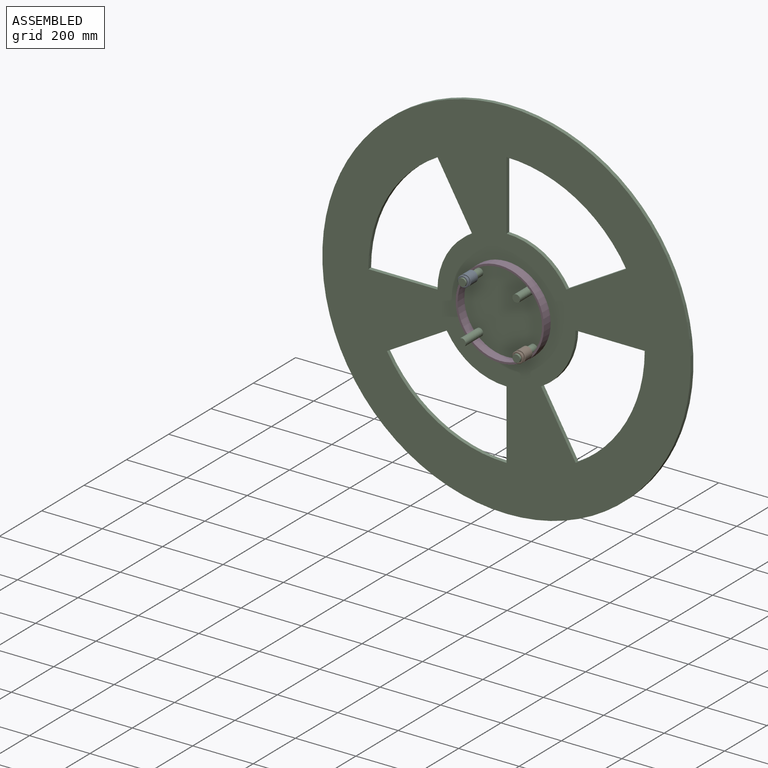
[diagram: assembled view]
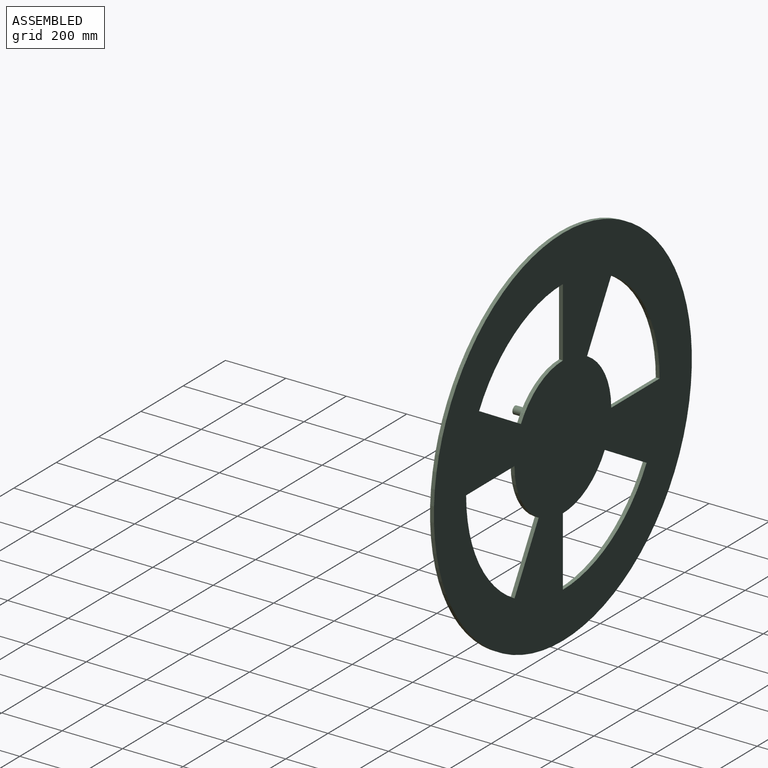
[diagram: assembled view, second angle]
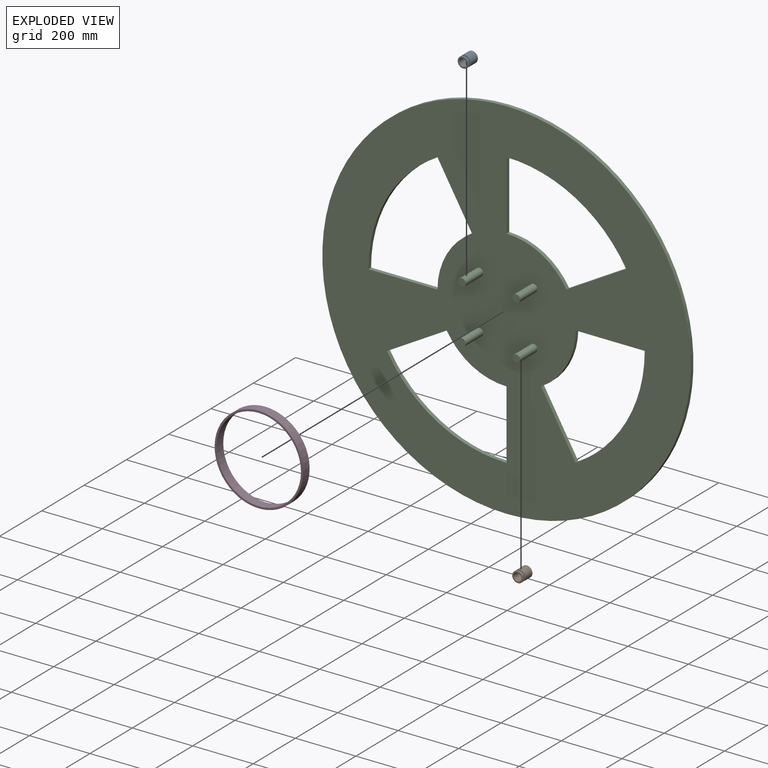
[diagram: exploded view]
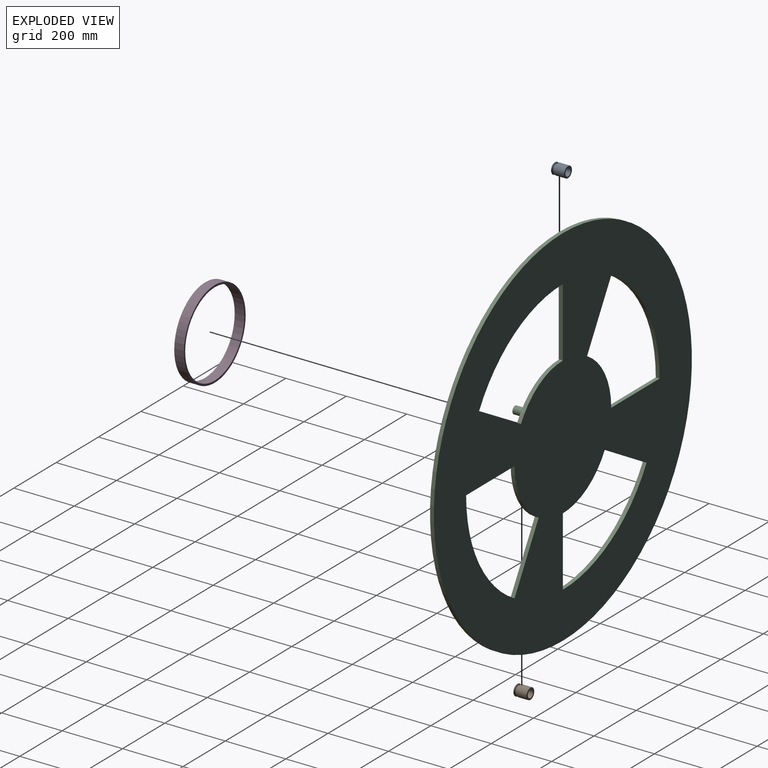
[diagram: exploded view, second angle]
ASSEMBLY  parts=4 mates=3
PART A: 14 faces, bbox 36.8x36.8x45.2 mm
  f0: cone r=18.41mm half-angle=45deg, axis (0,0,-1), area 122.1mm2, adj f1,f13
  f1: cylinder r=18.41mm len=36.83mm, axis (0,0,1), area 3791.2mm2, adj f0,f2
  f2: cone r=17.65mm half-angle=45deg, axis (0,0,1), area 122.1mm2, adj f1,f12
  f3: cone r=12.7mm half-angle=45deg, axis (0,0,-1), area 43.6mm2, adj f4,f12
  f4: cylinder r=12.7mm len=44.45mm, axis (0,0,1), area 3547mm2, adj f3,f5
  f5: cone r=13.08mm half-angle=45deg, axis (0,0,1), area 43.6mm2, adj f4,f11
  f6: cone r=18.41mm half-angle=45deg, axis (0,0,-1), area 239.1mm2, adj f7,f11
  f7: cylinder r=18.41mm len=36.83mm, axis (0,0,1), area 205.7mm2, adj f6,f8
  f8: cone r=16.89mm half-angle=45deg, axis (0,0,1), area 239.1mm2, adj f7,f10
  f9: cylinder r=14.22mm len=28.45mm, axis (0,0,1), area 544.8mm2, adj f10,f13
  f10: plane 33.78x33.78mm, normal (0,0,-1), area 260.7mm2, adj f8,f9
  f11: plane 33.78x33.78mm, normal (0,0,1), area 358.7mm2, adj f5,f6
  f12: plane 35.31x35.31mm, normal (0,0,-1), area 441.4mm2, adj f2,f3
  f13: plane 35.31x35.31mm, normal (0,0,1), area 343.4mm2, adj f0,f9
PART B: same geometry as A
PART C: 27 faces, bbox 1219.2x95.3x1219.2 mm
  f0: plane 1219.2x1219.2mm, normal (0,-1,0), area 837080.8mm2, adj f2,f3,f4,f5,f6,f7,f8,f9
  f1: plane 1219.2x1219.2mm, normal (0,1,0), area 839107.6mm2, adj f2,f3,f4,f5,f6,f7,f8,f9
  f2: cylinder r=609.6mm len=1219.2mm, axis (0,1,0), area 48643.9mm2, adj f0,f1
  f3: cylinder r=457.2mm len=395.95mm, axis (0,-1,0), area 6080.5mm2, adj f0,f1,f4,f6
  f4: plane 228.6x12.7mm, normal (1,0,0), area 2903.2mm2, adj f0,f1,f3,f5
  f5: cylinder r=228.6mm len=197.97mm, axis (0,-1,0), area 3040.2mm2, adj f0,f1,f4,f6
  f6: plane 197.97x114.3mm, normal (-0.5,0,0.87), area 2903.2mm2, adj f0,f1,f3,f5
  f7: cylinder r=457.2mm len=395.95mm, axis (0,-1,0), area 6080.5mm2, adj f0,f1,f8,f10
  f8: plane 228.6x12.7mm, normal (0,0,1), area 2903.2mm2, adj f0,f1,f7,f9
  f9: cylinder r=228.6mm len=197.97mm, axis (0,-1,0), area 3040.2mm2, adj f0,f1,f8,f10
  f10: plane 197.97x114.3mm, normal (-0.87,0,-0.5), area 2903.2mm2, adj f0,f1,f7,f9
  f11: cylinder r=457.2mm len=395.95mm, axis (0,-1,0), area 6080.5mm2, adj f0,f1,f12,f14
  f12: plane 228.6x12.7mm, normal (-1,0,0), area 2903.2mm2, adj f0,f1,f11,f13
  f13: cylinder r=228.6mm len=197.97mm, axis (0,-1,0), area 3040.2mm2, adj f0,f1,f12,f14
  f14: plane 197.97x114.3mm, normal (0.5,0,-0.87), area 2903.2mm2, adj f0,f1,f11,f13
  f15: cylinder r=457.2mm len=395.95mm, axis (0,-1,0), area 6080.5mm2, adj f0,f1,f16,f18
  f16: plane 228.6x12.7mm, normal (0,0,-1), area 2903.2mm2, adj f0,f1,f15,f17
  f17: cylinder r=228.6mm len=197.97mm, axis (0,-1,0), area 3040.2mm2, adj f0,f1,f16,f18
  f18: plane 197.97x114.3mm, normal (0.87,0,0.5), area 2903.2mm2, adj f0,f1,f15,f17
  f19: cylinder r=12.7mm len=82.55mm, axis (0,1,0), area 6587.2mm2, adj f0,f20
  f20: plane 25.4x25.4mm, normal (0,-1,0), area 506.7mm2, adj f19
  f21: cylinder r=12.7mm len=82.55mm, axis (0,1,0), area 6587.2mm2, adj f0,f22
  f22: plane 25.4x25.4mm, normal (0,-1,0), area 506.7mm2, adj f21
  f23: cylinder r=12.7mm len=82.55mm, axis (0,1,0), area 6587.2mm2, adj f0,f24
  f24: plane 25.4x25.4mm, normal (0,-1,0), area 506.7mm2, adj f23
  f25: cylinder r=12.7mm len=82.55mm, axis (0,1,0), area 6587.2mm2, adj f0,f26
  f26: plane 25.4x25.4mm, normal (0,-1,0), area 506.7mm2, adj f25
PART D: 4 faces, bbox 292.1x31.8x292.1 mm
  f0: cylinder r=139.7mm len=279.4mm, axis (0,1,0), area 27868.9mm2, adj f2,f3
  f1: cylinder r=146.05mm len=292.1mm, axis (0,1,0), area 29135.7mm2, adj f2,f3
  f2: plane 292.1x292.1mm, normal (0,-1,0), area 5700.5mm2, adj f0,f1
  f3: plane 292.1x292.1mm, normal (0,1,0), area 5700.5mm2, adj f0,f1
PLACE A rot(axis=(1,0,0),90deg) t=(-624.51,-287.63,145.64)mm
PLACE B rot(axis=(1,0,0),90deg) t=(-444.91,-286.5,-33.96)mm
PLACE C t=(-534.71,-197.24,55.84)mm
PLACE D rot(axis=(1,0,0),180deg) t=(-534.71,-241.69,55.84)mm
MATE slider B.f0 <-> C.f23  axis (0,-1,0) through (-444.91,-241.67,-33.96)mm
MATE slider A.f0 <-> C.f19  axis (0,1,0) through (-624.51,-242.42,145.64)mm
MATE fastened D.f0 <-> C.f17  axis (0,1,0) through (-534.71,-209.94,55.84)mm
